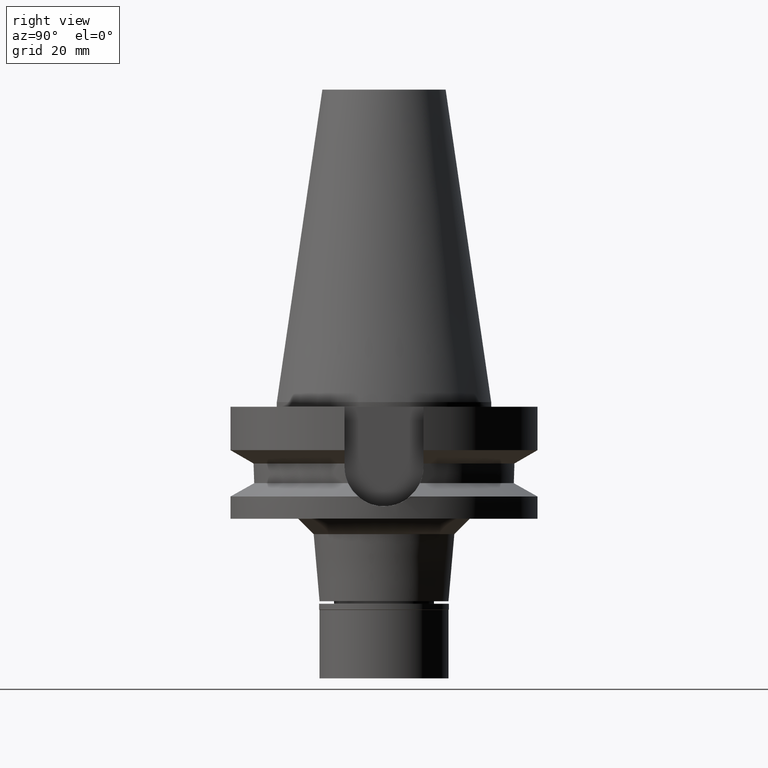
[diagram: clean part render]
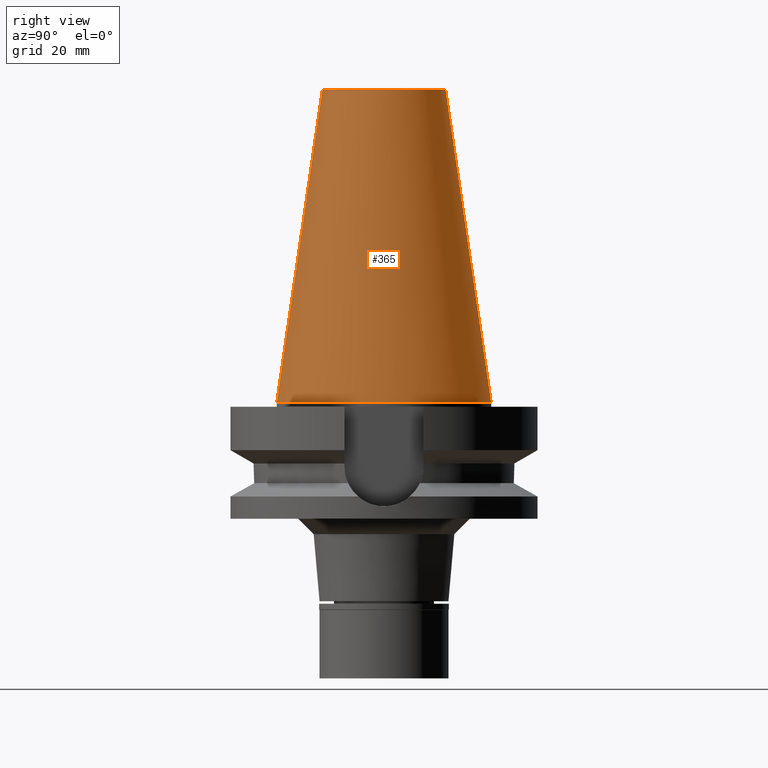
[diagram: same view with one face highlighted and labeled with its STEP entity id]
A machine part, right view. The second image highlights one B-rep face of the part: STEP entity #365.
In plain terms, the highlighted conical surface has half-angle 8.297 deg.
Its self-contained STEP definition (entity closure, byte-faithful):
#74 = CARTESIAN_POINT ( 'NONE',  ( 0.0000000000000000000, 1.847992019912999597E-14, 3.979039320256999774E-13 ) ) ;
#141 = EDGE_CURVE ( 'NONE', #2387, #808, #1981, .T. ) ;
#156 = DIRECTION ( 'NONE',  ( 0.0000000000000000000, 0.0000000000000000000, -1.000000000000000000 ) ) ;
#192 = ORIENTED_EDGE ( 'NONE', *, *, #141, .F. ) ;
#276 = CARTESIAN_POINT ( 'NONE',  ( 0.0000000000000000000, -20.07942971896000017, 101.7999999999999972 ) ) ;
#365 = ADVANCED_FACE ( 'NONE', ( #2601 ), #2249, .T. ) ;
#386 = CIRCLE ( 'NONE', #2088, 34.92499999999999716 ) ;
#480 = EDGE_CURVE ( 'NONE', #808, #575, #386, .T. ) ;
#514 = CARTESIAN_POINT ( 'NONE',  ( 0.0000000000000000000, 20.07942971896000017, 101.7999999999999972 ) ) ;
#575 = VERTEX_POINT ( 'NONE', #1987 ) ;
#597 = EDGE_CURVE ( 'NONE', #2387, #1860, #1996, .T. ) ;
#600 = CARTESIAN_POINT ( 'NONE',  ( 0.0000000000000000000, -20.07942971896000017, 101.7999999999999972 ) ) ;
#808 = VERTEX_POINT ( 'NONE', #2114 ) ;
#838 = ORIENTED_EDGE ( 'NONE', *, *, #480, .F. ) ;
#947 = ORIENTED_EDGE ( 'NONE', *, *, #2564, .T. ) ;
#987 = DIRECTION ( 'NONE',  ( 0.0000000000000000000, 0.0000000000000000000, -1.000000000000000000 ) ) ;
#1007 = CARTESIAN_POINT ( 'NONE',  ( 0.0000000000000000000, 1.847992019912999597E-14, 50.89999999999999858 ) ) ;
#1023 = DIRECTION ( 'NONE',  ( 0.0000000000000000000, 0.0000000000000000000, -1.000000000000000000 ) ) ;
#1110 = AXIS2_PLACEMENT_3D ( 'NONE', #2312, #156, #3046 ) ;
#1400 = ORIENTED_EDGE ( 'NONE', *, *, #597, .T. ) ;
#1498 = VECTOR ( 'NONE', #2885, 1000.000000000000114 ) ;
#1526 = LINE ( 'NONE', #600, #2719 ) ;
#1701 = EDGE_LOOP ( 'NONE', ( #1400, #947, #838, #192 ) ) ;
#1860 = VERTEX_POINT ( 'NONE', #276 ) ;
#1981 = LINE ( 'NONE', #514, #1498 ) ;
#1987 = CARTESIAN_POINT ( 'NONE',  ( 0.0000000000000000000, -34.92499999999999716, 4.902744876745000264E-13 ) ) ;
#1996 = CIRCLE ( 'NONE', #1110, 20.07942971896000017 ) ;
#2088 = AXIS2_PLACEMENT_3D ( 'NONE', #74, #1023, #2505 ) ;
#2114 = CARTESIAN_POINT ( 'NONE',  ( 0.0000000000000000000, 34.92499999999999716, 4.902744876745000264E-13 ) ) ;
#2249 = CONICAL_SURFACE ( 'NONE', #2509, 27.50221485948000222, 0.1448099680379422438 ) ;
#2260 = DIRECTION ( 'NONE',  ( 0.0000000000000000000, -0.1443043893538948075, -0.9895333461855641000 ) ) ;
#2312 = CARTESIAN_POINT ( 'NONE',  ( 0.0000000000000000000, 1.847992019912999597E-14, 101.7999999999999972 ) ) ;
#2387 = VERTEX_POINT ( 'NONE', #2927 ) ;
#2505 = DIRECTION ( 'NONE',  ( 0.0000000000000000000, 1.000000000000000000, 0.0000000000000000000 ) ) ;
#2509 = AXIS2_PLACEMENT_3D ( 'NONE', #1007, #987, #2619 ) ;
#2564 = EDGE_CURVE ( 'NONE', #1860, #575, #1526, .T. ) ;
#2601 = FACE_OUTER_BOUND ( 'NONE', #1701, .T. ) ;
#2619 = DIRECTION ( 'NONE',  ( 0.0000000000000000000, -1.000000000000000000, 0.0000000000000000000 ) ) ;
#2719 = VECTOR ( 'NONE', #2260, 1000.000000000000114 ) ;
#2885 = DIRECTION ( 'NONE',  ( 0.0000000000000000000, 0.1443043893538948075, -0.9895333461855641000 ) ) ;
#2927 = CARTESIAN_POINT ( 'NONE',  ( 0.0000000000000000000, 20.07942971896000017, 101.7999999999999972 ) ) ;
#3046 = DIRECTION ( 'NONE',  ( 0.0000000000000000000, 1.000000000000000000, 0.0000000000000000000 ) ) ;